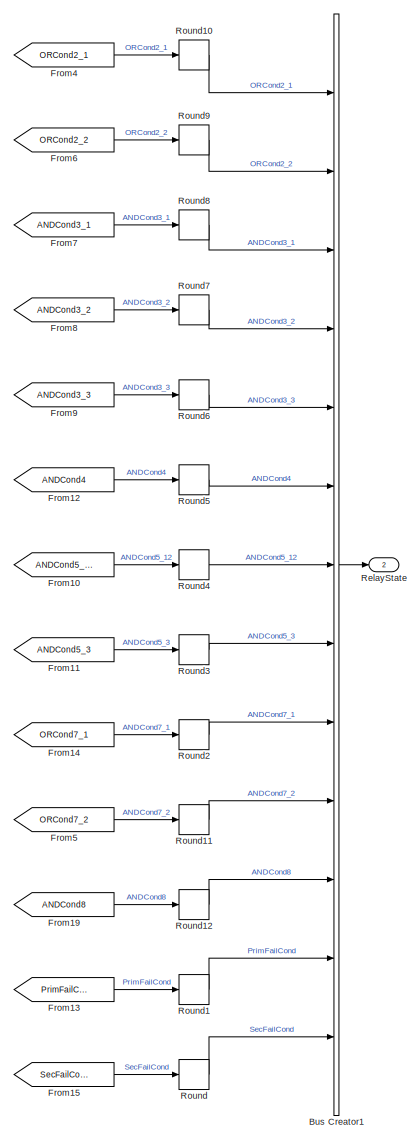
[diagram: root canvas - part 1/5, top right region]
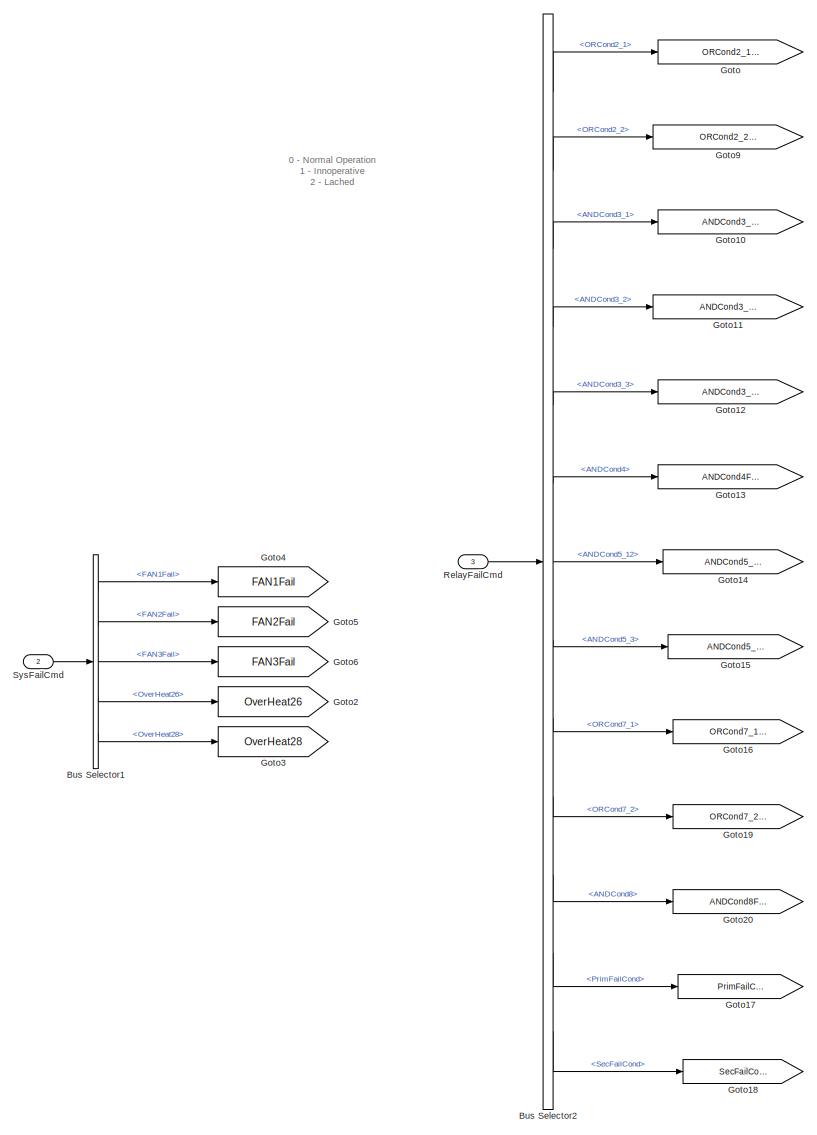
[diagram: root canvas - part 2/5, top center region]
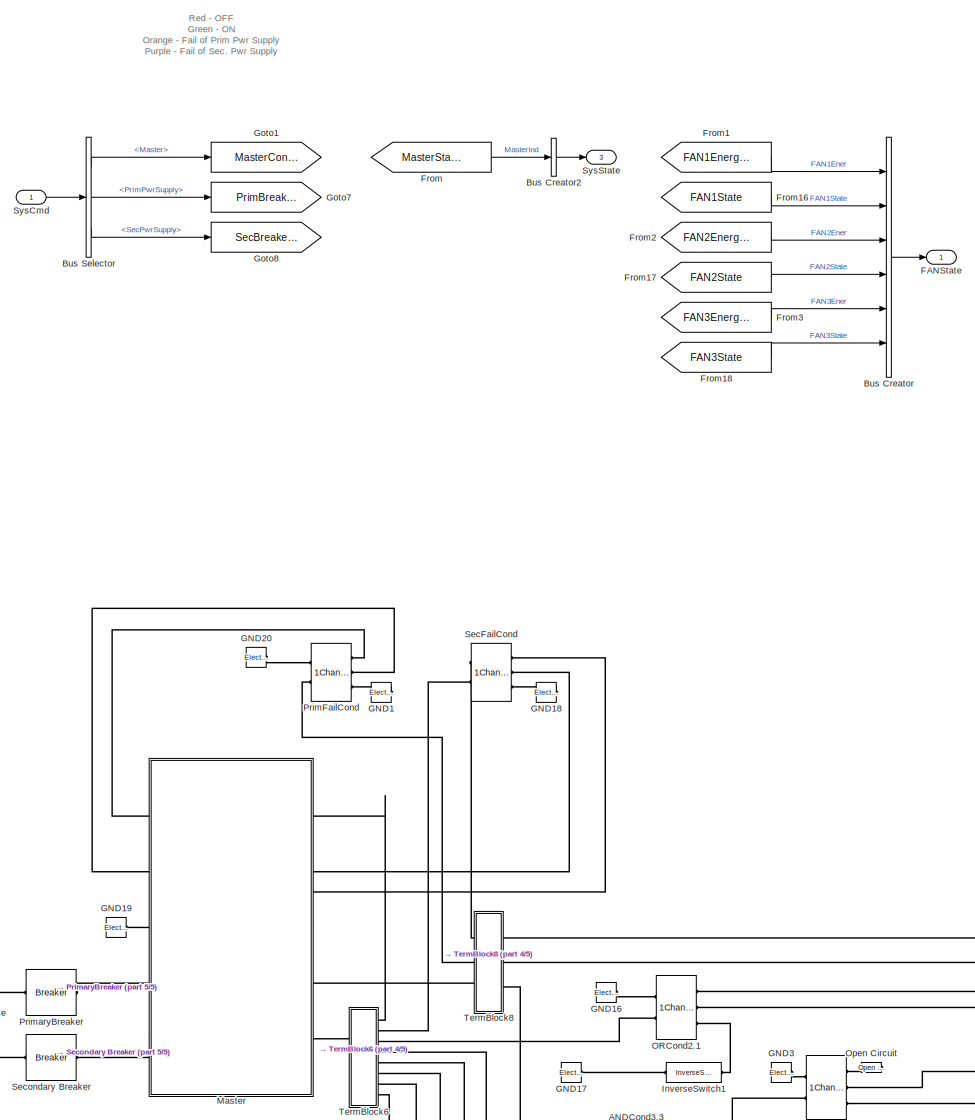
[diagram: root canvas - part 3/5, middle left region]
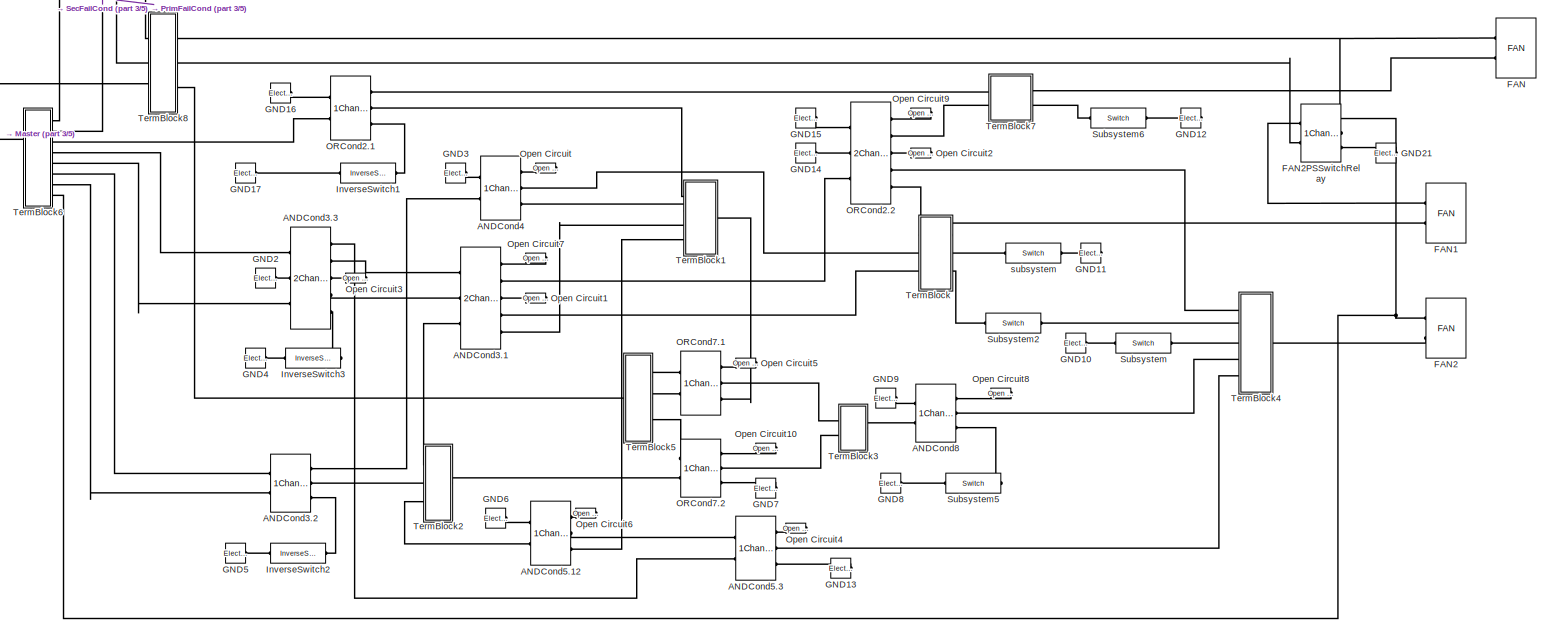
[diagram: root canvas - part 4/5, bottom center region]
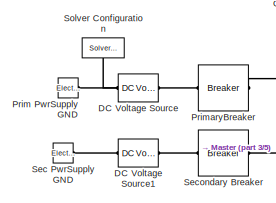
[diagram: root canvas - part 5/5, bottom left region]
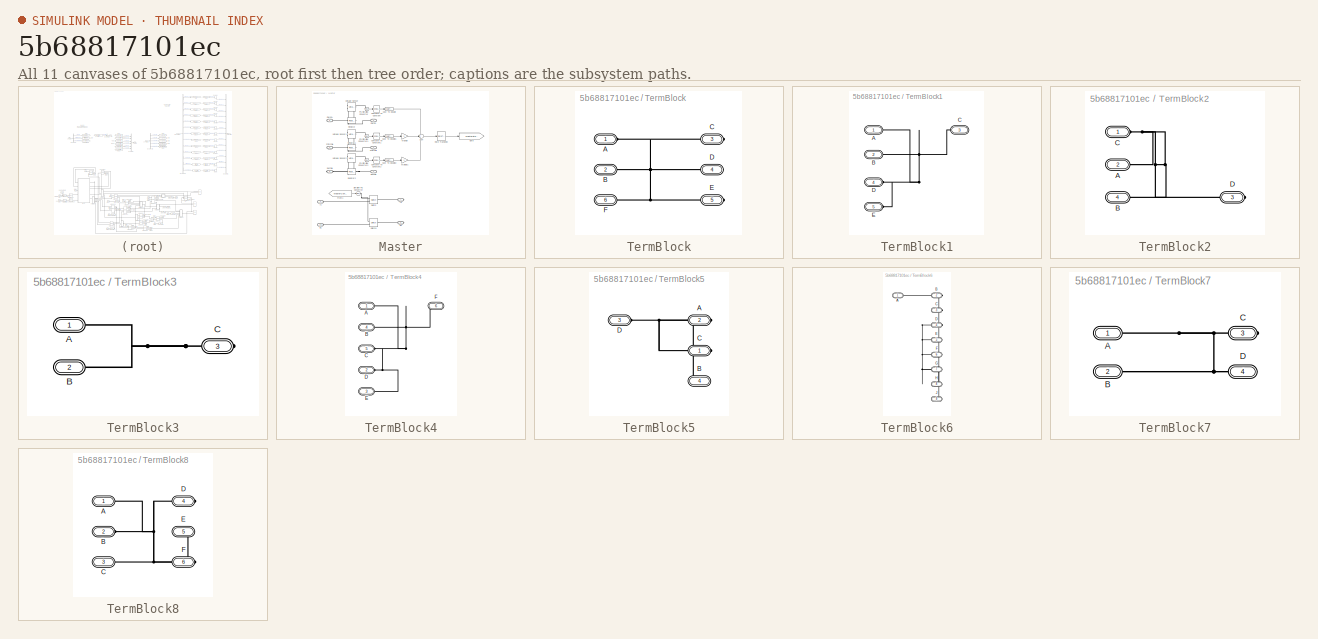
[diagram: thumbnail index - all 11 canvases of the model, root first then tree order]
MODEL slx_5b68817101ec
KIND model
CONFIG AbsTol = auto
CONFIG EnableMultiTasking = off
CONFIG FixedStep = 0.001
CONFIG MaxStep = auto
CONFIG MinStep = auto
CONFIG RelTol = 1e-3
CONFIG SampleTimeConstraint = Unconstrained
CONFIG Solver = ode4
CONFIG SolverName = ode4
CONFIG StartTime = 0.0
CONFIG StopTime = Inf
BLOCK [Reference] ANDCond3.1  REF=ElectricalElements/Switches/2ChannelRelay
  Ports = [0, 0, 0, 0, 0, 3, 5]
  SourceBlock = ElectricalElements/Switches/2ChannelRelay
BLOCK [Reference] ANDCond3.2  REF=ElectricalElements/Switches/1ChannelRelay
  Ports = [0, 0, 0, 0, 0, 2, 3]
  SourceBlock = ElectricalElements/Switches/1ChannelRelay
BLOCK [Reference] ANDCond3.3  REF=ElectricalElements/Switches/2ChannelRelay
  Ports = [0, 0, 0, 0, 0, 3, 5]
  SourceBlock = ElectricalElements/Switches/2ChannelRelay
BLOCK [Reference] ANDCond4  REF=ElectricalElements/Switches/1ChannelRelay
  Ports = [0, 0, 0, 0, 0, 2, 3]
  SourceBlock = ElectricalElements/Switches/1ChannelRelay
BLOCK [Reference] ANDCond5.12  REF=ElectricalElements/Switches/1ChannelRelay
  Ports = [0, 0, 0, 0, 0, 2, 3]
  SourceBlock = ElectricalElements/Switches/1ChannelRelay
BLOCK [Reference] ANDCond5.3  REF=ElectricalElements/Switches/1ChannelRelay
  Ports = [0, 0, 0, 0, 0, 2, 3]
  SourceBlock = ElectricalElements/Switches/1ChannelRelay
BLOCK [Reference] ANDCond8  REF=ElectricalElements/Switches/1ChannelRelay
  Ports = [0, 0, 0, 0, 0, 2, 3]
  SourceBlock = ElectricalElements/Switches/1ChannelRelay
BLOCK [BusCreator] Bus Creator
  DisplayOption = bar
  InheritFromInputs = on
  Inputs = 6
  Ports = [6, 1]
BLOCK [BusCreator] Bus Creator1
  DisplayOption = bar
  InheritFromInputs = on
  Inputs = 13
  Ports = [13, 1]
BLOCK [BusCreator] Bus Creator2
  DisplayOption = bar
  InheritFromInputs = on
  Inputs = 1
  Ports = [1, 1]
BLOCK [BusSelector] Bus Selector
  OutputAsBus = off
  OutputSignals = Master,PrimPwrSupply,SecPwrSupply
  Ports = [1, 3]
BLOCK [BusSelector] Bus Selector1
  OutputAsBus = off
  OutputSignals = FAN1Fail,FAN2Fail,FAN3Fail,OverHeat26,OverHeat28
  Ports = [1, 5]
BLOCK [BusSelector] Bus Selector2
  OutputAsBus = off
  OutputSignals = ORCond2_1,ORCond2_2,ANDCond3_1,ANDCond3_2,ANDCond3_3,ANDCond4,ANDCond5_12,ANDCond5_3,ORCond7_1,ORCond7_2,ANDCond8,PrimFailCond,SecFailCond
  Ports = [1, 13]
BLOCK [Reference] DC Voltage Source  REF=ee_lib/Additional
Components/SPICE Sources/DC Voltage Source
  Ports = [0, 0, 0, 0, 0, 1, 1]
  SourceBlock = ee_lib/Additional\nComponents/SPICE Sources/DC Voltage Source
  SourceProductBaseCode = PS
  SourceProductName = Simscape Electrical
  SourceType = DC Voltage Source
BLOCK [Reference] DC Voltage Source1  REF=ee_lib/Additional
Components/SPICE Sources/DC Voltage Source
  Ports = [0, 0, 0, 0, 0, 1, 1]
  SourceBlock = ee_lib/Additional\nComponents/SPICE Sources/DC Voltage Source
  SourceProductBaseCode = PS
  SourceProductName = Simscape Electrical
  SourceType = DC Voltage Source
BLOCK [Reference] FAN  REF=ElectricalElements/FunctionalItems/FAN
  AttributesFormatString = FAN%<FANNumber>
  Ports = [0, 0, 0, 0, 0, 2]
  SourceBlock = ElectricalElements/FunctionalItems/FAN
BLOCK [Reference] FAN1  REF=ElectricalElements/FunctionalItems/FAN
  AttributesFormatString = FAN%<FANNumber>
  Ports = [0, 0, 0, 0, 0, 2]
  SourceBlock = ElectricalElements/FunctionalItems/FAN
BLOCK [Reference] FAN2  REF=ElectricalElements/FunctionalItems/FAN
  AttributesFormatString = FAN%<FANNumber>
  Ports = [0, 0, 0, 0, 0, 2]
  SourceBlock = ElectricalElements/FunctionalItems/FAN
BLOCK [Reference] FAN2PSSwitchRelay  REF=ElectricalElements/Switches/1ChannelRelay
  Ports = [0, 0, 0, 0, 0, 2, 3]
  SourceBlock = ElectricalElements/Switches/1ChannelRelay
BLOCK [Outport] FANState
  IconDisplay = Port number
  OutDataTypeStr = Bus: FANState
  SampleTime = [0.001 0]
BLOCK [From] From
  GotoTag = MasterState
  TagVisibility = global
BLOCK [From] From1
  GotoTag = FAN1Energized
  TagVisibility = global
BLOCK [From] From10
  GotoTag = ANDCond5_12
  TagVisibility = global
BLOCK [From] From11
  GotoTag = ANDCond5_3
  TagVisibility = global
BLOCK [From] From12
  GotoTag = ANDCond4
  TagVisibility = global
BLOCK [From] From13
  GotoTag = PrimFailCond
  TagVisibility = global
BLOCK [From] From14
  GotoTag = ORCond7_1
  TagVisibility = global
BLOCK [From] From15
  GotoTag = SecFailCond
  TagVisibility = global
BLOCK [From] From16
  GotoTag = FAN1State
  TagVisibility = global
BLOCK [From] From17
  GotoTag = FAN2State
  TagVisibility = global
BLOCK [From] From18
  GotoTag = FAN3State
  TagVisibility = global
BLOCK [From] From19
  GotoTag = ANDCond8
  TagVisibility = global
BLOCK [From] From2
  GotoTag = FAN2Energized
  TagVisibility = global
BLOCK [From] From3
  GotoTag = FAN3Energized
  TagVisibility = global
BLOCK [From] From4
  GotoTag = ORCond2_1
  TagVisibility = global
BLOCK [From] From5
  GotoTag = ORCond7_2
  TagVisibility = global
BLOCK [From] From6
  GotoTag = ORCond2_2
  TagVisibility = global
BLOCK [From] From7
  GotoTag = ANDCond3_1
  TagVisibility = global
BLOCK [From] From8
  GotoTag = ANDCond3_2
  TagVisibility = global
BLOCK [From] From9
  GotoTag = ANDCond3_3
  TagVisibility = global
BLOCK [Reference] GND1  REF=fl_lib/Electrical/Electrical Elements/Electrical Reference
  Ports = [0, 0, 0, 0, 0, 1]
  SourceBlock = fl_lib/Electrical/Electrical Elements/Electrical Reference
  SourceProductBaseCode = SS
  SourceProductName = Simscape
  SourceType = Electrical Reference
BLOCK [Reference] GND10  REF=fl_lib/Electrical/Electrical Elements/Electrical Reference
  Ports = [0, 0, 0, 0, 0, 1]
  SourceBlock = fl_lib/Electrical/Electrical Elements/Electrical Reference
  SourceProductBaseCode = SS
  SourceProductName = Simscape
  SourceType = Electrical Reference
BLOCK [Reference] GND11  REF=fl_lib/Electrical/Electrical Elements/Electrical Reference
  Ports = [0, 0, 0, 0, 0, 1]
  SourceBlock = fl_lib/Electrical/Electrical Elements/Electrical Reference
  SourceProductBaseCode = SS
  SourceProductName = Simscape
  SourceType = Electrical Reference
BLOCK [Reference] GND12  REF=fl_lib/Electrical/Electrical Elements/Electrical Reference
  Ports = [0, 0, 0, 0, 0, 1]
  SourceBlock = fl_lib/Electrical/Electrical Elements/Electrical Reference
  SourceProductBaseCode = SS
  SourceProductName = Simscape
  SourceType = Electrical Reference
BLOCK [Reference] GND13  REF=fl_lib/Electrical/Electrical Elements/Electrical Reference
  Ports = [0, 0, 0, 0, 0, 1]
  SourceBlock = fl_lib/Electrical/Electrical Elements/Electrical Reference
  SourceProductBaseCode = SS
  SourceProductName = Simscape
  SourceType = Electrical Reference
BLOCK [Reference] GND14  REF=fl_lib/Electrical/Electrical Elements/Electrical Reference
  Ports = [0, 0, 0, 0, 0, 1]
  SourceBlock = fl_lib/Electrical/Electrical Elements/Electrical Reference
  SourceProductBaseCode = SS
  SourceProductName = Simscape
  SourceType = Electrical Reference
BLOCK [Reference] GND15  REF=fl_lib/Electrical/Electrical Elements/Electrical Reference
  Ports = [0, 0, 0, 0, 0, 1]
  SourceBlock = fl_lib/Electrical/Electrical Elements/Electrical Reference
  SourceProductBaseCode = SS
  SourceProductName = Simscape
  SourceType = Electrical Reference
BLOCK [Reference] GND16  REF=fl_lib/Electrical/Electrical Elements/Electrical Reference
  Ports = [0, 0, 0, 0, 0, 1]
  SourceBlock = fl_lib/Electrical/Electrical Elements/Electrical Reference
  SourceProductBaseCode = SS
  SourceProductName = Simscape
  SourceType = Electrical Reference
BLOCK [Reference] GND17  REF=fl_lib/Electrical/Electrical Elements/Electrical Reference
  Ports = [0, 0, 0, 0, 0, 1]
  SourceBlock = fl_lib/Electrical/Electrical Elements/Electrical Reference
  SourceProductBaseCode = SS
  SourceProductName = Simscape
  SourceType = Electrical Reference
BLOCK [Reference] GND18  REF=fl_lib/Electrical/Electrical Elements/Electrical Reference
  Ports = [0, 0, 0, 0, 0, 1]
  SourceBlock = fl_lib/Electrical/Electrical Elements/Electrical Reference
  SourceProductBaseCode = SS
  SourceProductName = Simscape
  SourceType = Electrical Reference
BLOCK [Reference] GND19  REF=fl_lib/Electrical/Electrical Elements/Electrical Reference
  Ports = [0, 0, 0, 0, 0, 1]
  SourceBlock = fl_lib/Electrical/Electrical Elements/Electrical Reference
  SourceProductBaseCode = SS
  SourceProductName = Simscape
  SourceType = Electrical Reference
BLOCK [Reference] GND2  REF=fl_lib/Electrical/Electrical Elements/Electrical Reference
  Ports = [0, 0, 0, 0, 0, 1]
  SourceBlock = fl_lib/Electrical/Electrical Elements/Electrical Reference
  SourceProductBaseCode = SS
  SourceProductName = Simscape
  SourceType = Electrical Reference
BLOCK [Reference] GND20  REF=fl_lib/Electrical/Electrical Elements/Electrical Reference
  Ports = [0, 0, 0, 0, 0, 1]
  SourceBlock = fl_lib/Electrical/Electrical Elements/Electrical Reference
  SourceProductBaseCode = SS
  SourceProductName = Simscape
  SourceType = Electrical Reference
BLOCK [Reference] GND21  REF=fl_lib/Electrical/Electrical Elements/Electrical Reference
  Ports = [0, 0, 0, 0, 0, 1]
  SourceBlock = fl_lib/Electrical/Electrical Elements/Electrical Reference
  SourceProductBaseCode = SS
  SourceProductName = Simscape
  SourceType = Electrical Reference
BLOCK [Reference] GND3  REF=fl_lib/Electrical/Electrical Elements/Electrical Reference
  Ports = [0, 0, 0, 0, 0, 1]
  SourceBlock = fl_lib/Electrical/Electrical Elements/Electrical Reference
  SourceProductBaseCode = SS
  SourceProductName = Simscape
  SourceType = Electrical Reference
BLOCK [Reference] GND4  REF=fl_lib/Electrical/Electrical Elements/Electrical Reference
  Ports = [0, 0, 0, 0, 0, 1]
  SourceBlock = fl_lib/Electrical/Electrical Elements/Electrical Reference
  SourceProductBaseCode = SS
  SourceProductName = Simscape
  SourceType = Electrical Reference
BLOCK [Reference] GND5  REF=fl_lib/Electrical/Electrical Elements/Electrical Reference
  Ports = [0, 0, 0, 0, 0, 1]
  SourceBlock = fl_lib/Electrical/Electrical Elements/Electrical Reference
  SourceProductBaseCode = SS
  SourceProductName = Simscape
  SourceType = Electrical Reference
BLOCK [Reference] GND6  REF=fl_lib/Electrical/Electrical Elements/Electrical Reference
  Ports = [0, 0, 0, 0, 0, 1]
  SourceBlock = fl_lib/Electrical/Electrical Elements/Electrical Reference
  SourceProductBaseCode = SS
  SourceProductName = Simscape
  SourceType = Electrical Reference
BLOCK [Reference] GND7  REF=fl_lib/Electrical/Electrical Elements/Electrical Reference
  Ports = [0, 0, 0, 0, 0, 1]
  SourceBlock = fl_lib/Electrical/Electrical Elements/Electrical Reference
  SourceProductBaseCode = SS
  SourceProductName = Simscape
  SourceType = Electrical Reference
BLOCK [Reference] GND8  REF=fl_lib/Electrical/Electrical Elements/Electrical Reference
  Ports = [0, 0, 0, 0, 0, 1]
  SourceBlock = fl_lib/Electrical/Electrical Elements/Electrical Reference
  SourceProductBaseCode = SS
  SourceProductName = Simscape
  SourceType = Electrical Reference
BLOCK [Reference] GND9  REF=fl_lib/Electrical/Electrical Elements/Electrical Reference
  Ports = [0, 0, 0, 0, 0, 1]
  SourceBlock = fl_lib/Electrical/Electrical Elements/Electrical Reference
  SourceProductBaseCode = SS
  SourceProductName = Simscape
  SourceType = Electrical Reference
BLOCK [Goto] Goto
  GotoTag = ORCond2_1FailMode
  TagVisibility = global
BLOCK [Goto] Goto1
  GotoTag = MasterControl
  TagVisibility = global
BLOCK [Goto] Goto10
  GotoTag = ANDCond3_1FailMode
  TagVisibility = global
BLOCK [Goto] Goto11
  GotoTag = ANDCond3_2FailMode
  TagVisibility = global
BLOCK [Goto] Goto12
  GotoTag = ANDCond3_3FailMode
  TagVisibility = global
BLOCK [Goto] Goto13
  GotoTag = ANDCond4FailMode
  TagVisibility = global
BLOCK [Goto] Goto14
  GotoTag = ANDCond5_12FailMode
  TagVisibility = global
BLOCK [Goto] Goto15
  GotoTag = ANDCond5_3FailMode
  TagVisibility = global
BLOCK [Goto] Goto16
  GotoTag = ORCond7_1FailMode
  TagVisibility = global
BLOCK [Goto] Goto17
  GotoTag = PrimFailCondFailMode
  TagVisibility = global
BLOCK [Goto] Goto18
  GotoTag = SecFailCondFailMode
  TagVisibility = global
BLOCK [Goto] Goto19
  GotoTag = ORCond7_2FailMode
  TagVisibility = global
BLOCK [Goto] Goto2
  GotoTag = OverHeat26
  TagVisibility = global
BLOCK [Goto] Goto20
  GotoTag = ANDCond8FailMode
  TagVisibility = global
BLOCK [Goto] Goto3
  GotoTag = OverHeat28
  TagVisibility = global
BLOCK [Goto] Goto4
  GotoTag = FAN1Fail
  TagVisibility = global
BLOCK [Goto] Goto5
  GotoTag = FAN2Fail
  TagVisibility = global
BLOCK [Goto] Goto6
  GotoTag = FAN3Fail
  TagVisibility = global
BLOCK [Goto] Goto7
  GotoTag = PrimBreakerCommand
  TagVisibility = global
BLOCK [Goto] Goto8
  GotoTag = SecBreakerCommand
  TagVisibility = global
BLOCK [Goto] Goto9
  GotoTag = ORCond2_2FailMode
  TagVisibility = global
BLOCK [Reference] InverseSwitch1  REF=ElectricalElements/Switches/InverseSwitch
  AttributesFormatString = Inverse %<SwitchTag>
  Ports = [0, 0, 0, 0, 0, 1, 1]
  SourceBlock = ElectricalElements/Switches/InverseSwitch
BLOCK [Reference] InverseSwitch2  REF=ElectricalElements/Switches/InverseSwitch
  AttributesFormatString = Inverse %<SwitchTag>
  Ports = [0, 0, 0, 0, 0, 1, 1]
  SourceBlock = ElectricalElements/Switches/InverseSwitch
BLOCK [Reference] InverseSwitch3  REF=ElectricalElements/Switches/InverseSwitch
  AttributesFormatString = Inverse %<SwitchTag>
  Ports = [0, 0, 0, 0, 0, 1, 1]
  SourceBlock = ElectricalElements/Switches/InverseSwitch
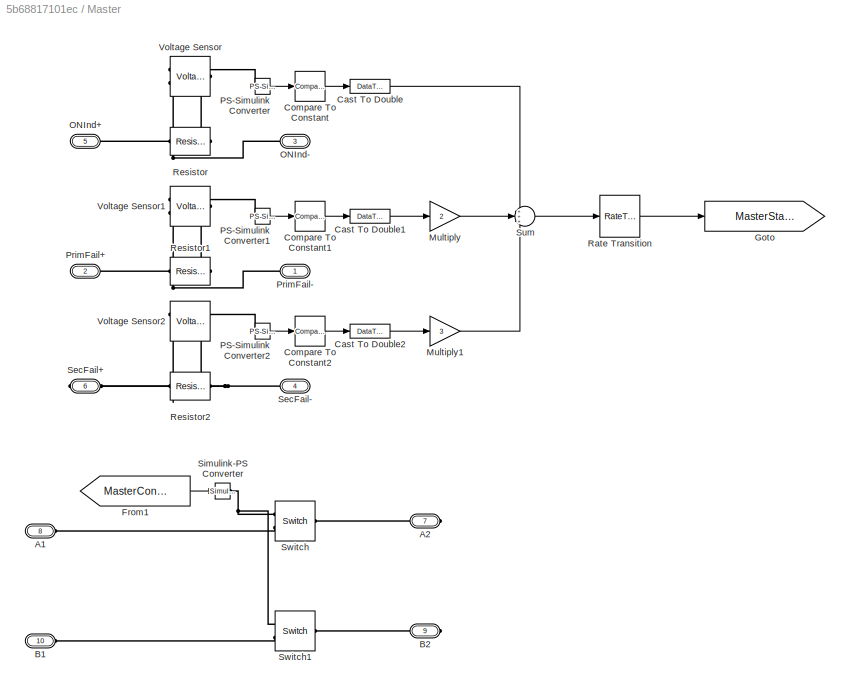
BLOCK [SubSystem] Master
  Ports = [0, 0, 0, 0, 0, 5, 5]
  RequestExecContextInheritance = off
BLOCK [PMIOPort] Master/A1
  Port = 8
  Side = Left
BLOCK [PMIOPort] Master/A2
  Port = 7
  Side = Right
BLOCK [PMIOPort] Master/B1
  Port = 10
  Side = Left
BLOCK [PMIOPort] Master/B2
  Port = 9
  Side = Right
BLOCK [DataTypeConversion] Master/Cast To Double
  OutDataTypeStr = double
  RndMeth = Floor
  SaturateOnIntegerOverflow = off
BLOCK [DataTypeConversion] Master/Cast To Double1
  OutDataTypeStr = double
  RndMeth = Floor
  SaturateOnIntegerOverflow = off
BLOCK [DataTypeConversion] Master/Cast To Double2
  OutDataTypeStr = double
  RndMeth = Floor
  SaturateOnIntegerOverflow = off
BLOCK [Reference] Master/Compare To Constant  REF=simulink/Logic and Bit
Operations/Compare
To Constant
  Ports = [1, 1]
  SourceBlock = simulink/Logic and Bit\nOperations/Compare\nTo Constant
  SourceProductBaseCode = SL
  SourceProductName = Simulink
  SourceType = Compare To Constant
BLOCK [Reference] Master/Compare To Constant1  REF=simulink/Logic and Bit
Operations/Compare
To Constant
  Ports = [1, 1]
  SourceBlock = simulink/Logic and Bit\nOperations/Compare\nTo Constant
  SourceProductBaseCode = SL
  SourceProductName = Simulink
  SourceType = Compare To Constant
BLOCK [Reference] Master/Compare To Constant2  REF=simulink/Logic and Bit
Operations/Compare
To Constant
  Ports = [1, 1]
  SourceBlock = simulink/Logic and Bit\nOperations/Compare\nTo Constant
  SourceProductBaseCode = SL
  SourceProductName = Simulink
  SourceType = Compare To Constant
BLOCK [From] Master/From1
  GotoTag = MasterControl
  TagVisibility = global
BLOCK [Goto] Master/Goto
  GotoTag = MasterState
  TagVisibility = global
BLOCK [Gain] Master/Multiply
  Gain = 2
  OutDataTypeStr = Inherit: Inherit via internal rule
  ParamDataTypeStr = Inherit: Inherit via internal rule
  SaturateOnIntegerOverflow = off
BLOCK [Gain] Master/Multiply1
  Gain = 3
  OutDataTypeStr = Inherit: Inherit via internal rule
  ParamDataTypeStr = Inherit: Inherit via internal rule
  SaturateOnIntegerOverflow = off
BLOCK [PMIOPort] Master/ONInd+
  Port = 5
  Side = Right
BLOCK [PMIOPort] Master/ONInd-
  Port = 3
  Side = Left
BLOCK [Reference] Master/PS-Simulink Converter  REF=nesl_utility/PS-Simulink
Converter
  Ports = [0, 1, 0, 0, 0, 1]
  SourceBlock = nesl_utility/PS-Simulink\nConverter
  SourceProductBaseCode = SS
  SourceProductName = Simscape
  SourceType = PS-Simulink\nConverter
BLOCK [Reference] Master/PS-Simulink Converter1  REF=nesl_utility/PS-Simulink
Converter
  Ports = [0, 1, 0, 0, 0, 1]
  SourceBlock = nesl_utility/PS-Simulink\nConverter
  SourceProductBaseCode = SS
  SourceProductName = Simscape
  SourceType = PS-Simulink\nConverter
BLOCK [Reference] Master/PS-Simulink Converter2  REF=nesl_utility/PS-Simulink
Converter
  Ports = [0, 1, 0, 0, 0, 1]
  SourceBlock = nesl_utility/PS-Simulink\nConverter
  SourceProductBaseCode = SS
  SourceProductName = Simscape
  SourceType = PS-Simulink\nConverter
BLOCK [PMIOPort] Master/PrimFail+
  Port = 2
  Side = Right
BLOCK [PMIOPort] Master/PrimFail-
  Side = Left
BLOCK [RateTransition] Master/Rate Transition
  OutPortSampleTime = [0.001 0]
BLOCK [Reference] Master/Resistor  REF=fl_lib/Electrical/Electrical Elements/Resistor
  Ports = [0, 0, 0, 0, 0, 1, 1]
  SourceBlock = fl_lib/Electrical/Electrical Elements/Resistor
  SourceProductBaseCode = SS
  SourceProductName = Simscape
  SourceType = Resistor
BLOCK [Reference] Master/Resistor1  REF=fl_lib/Electrical/Electrical Elements/Resistor
  Ports = [0, 0, 0, 0, 0, 1, 1]
  SourceBlock = fl_lib/Electrical/Electrical Elements/Resistor
  SourceProductBaseCode = SS
  SourceProductName = Simscape
  SourceType = Resistor
BLOCK [Reference] Master/Resistor2  REF=fl_lib/Electrical/Electrical Elements/Resistor
  Ports = [0, 0, 0, 0, 0, 1, 1]
  SourceBlock = fl_lib/Electrical/Electrical Elements/Resistor
  SourceProductBaseCode = SS
  SourceProductName = Simscape
  SourceType = Resistor
BLOCK [PMIOPort] Master/SecFail+
  Port = 6
  Side = Right
BLOCK [PMIOPort] Master/SecFail-
  Port = 4
  Side = Left
BLOCK [Reference] Master/Simulink-PS Converter  REF=nesl_utility/Simulink-PS
Converter
  Ports = [1, 0, 0, 0, 0, 0, 1]
  SourceBlock = nesl_utility/Simulink-PS\nConverter
  SourceProductBaseCode = SS
  SourceProductName = Simscape
  SourceType = Simulink-PS\nConverter
BLOCK [Sum] Master/Sum
  IconShape = round
  InputSameDT = off
  Inputs = +++
  OutDataTypeStr = Inherit: Inherit via internal rule
  Ports = [3, 1]
  SaturateOnIntegerOverflow = off
BLOCK [Reference] Master/Switch  REF=fl_lib/Electrical/Electrical Elements/Switch
  Ports = [0, 0, 0, 0, 0, 1, 2]
  SourceBlock = fl_lib/Electrical/Electrical Elements/Switch
  SourceProductBaseCode = SS
  SourceProductName = Simscape
  SourceType = Switch
BLOCK [Reference] Master/Switch1  REF=fl_lib/Electrical/Electrical Elements/Switch
  Ports = [0, 0, 0, 0, 0, 1, 2]
  SourceBlock = fl_lib/Electrical/Electrical Elements/Switch
  SourceProductBaseCode = SS
  SourceProductName = Simscape
  SourceType = Switch
BLOCK [Reference] Master/Voltage Sensor  REF=fl_lib/Electrical/Electrical Sensors/Voltage Sensor
  Ports = [0, 0, 0, 0, 0, 1, 2]
  SourceBlock = fl_lib/Electrical/Electrical Sensors/Voltage Sensor
  SourceProductBaseCode = SS
  SourceProductName = Simscape
  SourceType = Voltage Sensor
BLOCK [Reference] Master/Voltage Sensor1  REF=fl_lib/Electrical/Electrical Sensors/Voltage Sensor
  Ports = [0, 0, 0, 0, 0, 1, 2]
  SourceBlock = fl_lib/Electrical/Electrical Sensors/Voltage Sensor
  SourceProductBaseCode = SS
  SourceProductName = Simscape
  SourceType = Voltage Sensor
BLOCK [Reference] Master/Voltage Sensor2  REF=fl_lib/Electrical/Electrical Sensors/Voltage Sensor
  Ports = [0, 0, 0, 0, 0, 1, 2]
  SourceBlock = fl_lib/Electrical/Electrical Sensors/Voltage Sensor
  SourceProductBaseCode = SS
  SourceProductName = Simscape
  SourceType = Voltage Sensor
BLOCK [Reference] ORCond2.1  REF=ElectricalElements/Switches/1ChannelRelay
  Ports = [0, 0, 0, 0, 0, 2, 3]
  SourceBlock = ElectricalElements/Switches/1ChannelRelay
BLOCK [Reference] ORCond2.2  REF=ElectricalElements/Switches/2ChannelRelay
  Ports = [0, 0, 0, 0, 0, 3, 5]
  SourceBlock = ElectricalElements/Switches/2ChannelRelay
BLOCK [Reference] ORCond7.1  REF=ElectricalElements/Switches/1ChannelRelay
  Ports = [0, 0, 0, 0, 0, 2, 3]
  SourceBlock = ElectricalElements/Switches/1ChannelRelay
BLOCK [Reference] ORCond7.2  REF=ElectricalElements/Switches/1ChannelRelay
  Ports = [0, 0, 0, 0, 0, 2, 3]
  SourceBlock = ElectricalElements/Switches/1ChannelRelay
BLOCK [Reference] Open Circuit  REF=fl_lib/Electrical/Electrical Elements/Open Circuit
  Ports = [0, 0, 0, 0, 0, 1]
  SourceBlock = fl_lib/Electrical/Electrical Elements/Open Circuit
  SourceProductBaseCode = SS
  SourceProductName = Simscape
  SourceType = Open Circuit
BLOCK [Reference] Open Circuit1  REF=fl_lib/Electrical/Electrical Elements/Open Circuit
  Ports = [0, 0, 0, 0, 0, 1]
  SourceBlock = fl_lib/Electrical/Electrical Elements/Open Circuit
  SourceProductBaseCode = SS
  SourceProductName = Simscape
  SourceType = Open Circuit
BLOCK [Reference] Open Circuit10  REF=fl_lib/Electrical/Electrical Elements/Open Circuit
  Ports = [0, 0, 0, 0, 0, 1]
  SourceBlock = fl_lib/Electrical/Electrical Elements/Open Circuit
  SourceProductBaseCode = SS
  SourceProductName = Simscape
  SourceType = Open Circuit
BLOCK [Reference] Open Circuit2  REF=fl_lib/Electrical/Electrical Elements/Open Circuit
  Ports = [0, 0, 0, 0, 0, 1]
  SourceBlock = fl_lib/Electrical/Electrical Elements/Open Circuit
  SourceProductBaseCode = SS
  SourceProductName = Simscape
  SourceType = Open Circuit
BLOCK [Reference] Open Circuit3  REF=fl_lib/Electrical/Electrical Elements/Open Circuit
  Ports = [0, 0, 0, 0, 0, 1]
  SourceBlock = fl_lib/Electrical/Electrical Elements/Open Circuit
  SourceProductBaseCode = SS
  SourceProductName = Simscape
  SourceType = Open Circuit
BLOCK [Reference] Open Circuit4  REF=fl_lib/Electrical/Electrical Elements/Open Circuit
  Ports = [0, 0, 0, 0, 0, 1]
  SourceBlock = fl_lib/Electrical/Electrical Elements/Open Circuit
  SourceProductBaseCode = SS
  SourceProductName = Simscape
  SourceType = Open Circuit
BLOCK [Reference] Open Circuit5  REF=fl_lib/Electrical/Electrical Elements/Open Circuit
  Ports = [0, 0, 0, 0, 0, 1]
  SourceBlock = fl_lib/Electrical/Electrical Elements/Open Circuit
  SourceProductBaseCode = SS
  SourceProductName = Simscape
  SourceType = Open Circuit
BLOCK [Reference] Open Circuit6  REF=fl_lib/Electrical/Electrical Elements/Open Circuit
  Ports = [0, 0, 0, 0, 0, 1]
  SourceBlock = fl_lib/Electrical/Electrical Elements/Open Circuit
  SourceProductBaseCode = SS
  SourceProductName = Simscape
  SourceType = Open Circuit
BLOCK [Reference] Open Circuit7  REF=fl_lib/Electrical/Electrical Elements/Open Circuit
  Ports = [0, 0, 0, 0, 0, 1]
  SourceBlock = fl_lib/Electrical/Electrical Elements/Open Circuit
  SourceProductBaseCode = SS
  SourceProductName = Simscape
  SourceType = Open Circuit
BLOCK [Reference] Open Circuit8  REF=fl_lib/Electrical/Electrical Elements/Open Circuit
  Ports = [0, 0, 0, 0, 0, 1]
  SourceBlock = fl_lib/Electrical/Electrical Elements/Open Circuit
  SourceProductBaseCode = SS
  SourceProductName = Simscape
  SourceType = Open Circuit
BLOCK [Reference] Open Circuit9  REF=fl_lib/Electrical/Electrical Elements/Open Circuit
  Ports = [0, 0, 0, 0, 0, 1]
  SourceBlock = fl_lib/Electrical/Electrical Elements/Open Circuit
  SourceProductBaseCode = SS
  SourceProductName = Simscape
  SourceType = Open Circuit
BLOCK [Reference] Prim PwrSupply GND  REF=fl_lib/Electrical/Electrical Elements/Electrical Reference
  Ports = [0, 0, 0, 0, 0, 1]
  SourceBlock = fl_lib/Electrical/Electrical Elements/Electrical Reference
  SourceProductBaseCode = SS
  SourceProductName = Simscape
  SourceType = Electrical Reference
BLOCK [Reference] PrimFailCond  REF=ElectricalElements/Switches/1ChannelRelay
  Ports = [0, 0, 0, 0, 0, 2, 3]
  SourceBlock = ElectricalElements/Switches/1ChannelRelay
BLOCK [Reference] PrimaryBreaker  REF=ElectricalElements/Switches/Breaker
  Ports = [0, 0, 0, 0, 0, 1, 1]
  SourceBlock = ElectricalElements/Switches/Breaker
BLOCK [Inport] RelayFailCmd
  IconDisplay = Port number
  OutDataTypeStr = Bus: RelayFailCmd
  Port = 3
  SampleTime = [0.001 0]
BLOCK [Outport] RelayState
  IconDisplay = Port number
  OutDataTypeStr = Bus: RelayState
  Port = 2
  SampleTime = [0.001 0]
BLOCK [Rounding] Round
  Operator = round
BLOCK [Rounding] Round1
  Operator = round
BLOCK [Rounding] Round10
  Operator = round
BLOCK [Rounding] Round11
  Operator = round
BLOCK [Rounding] Round12
  Operator = round
BLOCK [Rounding] Round2
  Operator = round
BLOCK [Rounding] Round3
  Operator = round
BLOCK [Rounding] Round4
  Operator = round
BLOCK [Rounding] Round5
  Operator = round
BLOCK [Rounding] Round6
  Operator = round
BLOCK [Rounding] Round7
  Operator = round
BLOCK [Rounding] Round8
  Operator = round
BLOCK [Rounding] Round9
  Operator = round
BLOCK [Reference] Sec PwrSupply GND  REF=fl_lib/Electrical/Electrical Elements/Electrical Reference
  Ports = [0, 0, 0, 0, 0, 1]
  SourceBlock = fl_lib/Electrical/Electrical Elements/Electrical Reference
  SourceProductBaseCode = SS
  SourceProductName = Simscape
  SourceType = Electrical Reference
BLOCK [Reference] SecFailCond  REF=ElectricalElements/Switches/1ChannelRelay
  Ports = [0, 0, 0, 0, 0, 2, 3]
  SourceBlock = ElectricalElements/Switches/1ChannelRelay
BLOCK [Reference] Secondary Breaker  REF=ElectricalElements/Switches/Breaker
  Ports = [0, 0, 0, 0, 0, 1, 1]
  SourceBlock = ElectricalElements/Switches/Breaker
BLOCK [Reference] Solver Configuration  REF=nesl_utility/Solver
Configuration
  Ports = [0, 0, 0, 0, 0, 0, 1]
  SourceBlock = nesl_utility/Solver\nConfiguration
  SourceProductBaseCode = SS
  SourceProductName = Simscape
  SourceType = Solver\nConfiguration
BLOCK [Reference] Subsystem  REF=ElectricalElements/Switches/Switch
  AttributesFormatString = %<SwitchTag>
  Ports = [0, 0, 0, 0, 0, 1, 1]
  SourceBlock = ElectricalElements/Switches/Switch
BLOCK [Reference] Subsystem2  REF=ElectricalElements/Switches/Switch
  AttributesFormatString = %<SwitchTag>
  Ports = [0, 0, 0, 0, 0, 1, 1]
  SourceBlock = ElectricalElements/Switches/Switch
BLOCK [Reference] Subsystem5  REF=ElectricalElements/Switches/Switch
  AttributesFormatString = %<SwitchTag>
  Ports = [0, 0, 0, 0, 0, 1, 1]
  SourceBlock = ElectricalElements/Switches/Switch
BLOCK [Reference] Subsystem6  REF=ElectricalElements/Switches/Switch
  AttributesFormatString = %<SwitchTag>
  Ports = [0, 0, 0, 0, 0, 1, 1]
  SourceBlock = ElectricalElements/Switches/Switch
BLOCK [Inport] SysCmd
  IconDisplay = Port number
  OutDataTypeStr = Bus: SysCmd
  SampleTime = [0.001 0]
BLOCK [Inport] SysFailCmd
  IconDisplay = Port number
  OutDataTypeStr = Bus: SysFailCmd
  Port = 2
  SampleTime = [0.001 0]
BLOCK [Outport] SysState
  IconDisplay = Port number
  OutDataTypeStr = Bus: SysState
  Port = 3
  SampleTime = [0.001 0]
BLOCK [SubSystem] TermBlock
  Ports = [0, 0, 0, 0, 0, 3, 3]
  RequestExecContextInheritance = off
BLOCK [PMIOPort] TermBlock/A
  Side = Left
BLOCK [PMIOPort] TermBlock/B
  Port = 2
  Side = Left
BLOCK [PMIOPort] TermBlock/C
  Port = 3
  Side = Right
BLOCK [PMIOPort] TermBlock/D
  Port = 4
  Side = Right
BLOCK [PMIOPort] TermBlock/E
  Port = 5
  Side = Right
BLOCK [PMIOPort] TermBlock/F
  Port = 6
  Side = Left
BLOCK [SubSystem] TermBlock1
  Ports = [0, 0, 0, 0, 0, 4, 1]
  RequestExecContextInheritance = off
BLOCK [PMIOPort] TermBlock1/A
  Side = Left
BLOCK [PMIOPort] TermBlock1/B
  Port = 2
  Side = Left
BLOCK [PMIOPort] TermBlock1/C
  Port = 3
  Side = Right
BLOCK [PMIOPort] TermBlock1/D
  Port = 4
  Side = Left
BLOCK [PMIOPort] TermBlock1/E
  Port = 5
  Side = Left
BLOCK [SubSystem] TermBlock2
  Ports = [0, 0, 0, 0, 0, 3, 1]
  RequestExecContextInheritance = off
BLOCK [PMIOPort] TermBlock2/A
  Port = 2
  Side = Left
BLOCK [PMIOPort] TermBlock2/B
  Port = 4
  Side = Left
BLOCK [PMIOPort] TermBlock2/C
  Side = Left
BLOCK [PMIOPort] TermBlock2/D
  Port = 3
  Side = Right
BLOCK [SubSystem] TermBlock3
  Ports = [0, 0, 0, 0, 0, 2, 1]
  RequestExecContextInheritance = off
BLOCK [PMIOPort] TermBlock3/A
  Side = Left
BLOCK [PMIOPort] TermBlock3/B
  Port = 2
  Side = Left
BLOCK [PMIOPort] TermBlock3/C
  Port = 3
  Side = Right
BLOCK [SubSystem] TermBlock4
  Ports = [0, 0, 0, 0, 0, 5, 1]
  RequestExecContextInheritance = off
BLOCK [PMIOPort] TermBlock4/A
  Side = Left
BLOCK [PMIOPort] TermBlock4/B
  Port = 4
  Side = Left
BLOCK [PMIOPort] TermBlock4/C
  Port = 5
  Side = Left
BLOCK [PMIOPort] TermBlock4/D
  Port = 2
  Side = Left
BLOCK [PMIOPort] TermBlock4/E
  Port = 3
  Side = Left
BLOCK [PMIOPort] TermBlock4/F
  Port = 6
  Side = Right
BLOCK [SubSystem] TermBlock5
  Ports = [0, 0, 0, 0, 0, 1, 3]
  RequestExecContextInheritance = off
BLOCK [PMIOPort] TermBlock5/A
  Port = 2
  Side = Right
BLOCK [PMIOPort] TermBlock5/B
  Port = 4
  Side = Right
BLOCK [PMIOPort] TermBlock5/C
  Side = Right
BLOCK [PMIOPort] TermBlock5/D
  Port = 3
  Side = Left
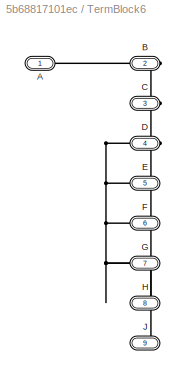
BLOCK [SubSystem] TermBlock6
  Ports = [0, 0, 0, 0, 0, 1, 8]
  RequestExecContextInheritance = off
BLOCK [PMIOPort] TermBlock6/A
  Side = Left
BLOCK [PMIOPort] TermBlock6/B
  Port = 2
  Side = Right
BLOCK [PMIOPort] TermBlock6/C
  Port = 3
  Side = Right
BLOCK [PMIOPort] TermBlock6/D
  Port = 4
  Side = Right
BLOCK [PMIOPort] TermBlock6/E
  Port = 5
  Side = Right
BLOCK [PMIOPort] TermBlock6/F
  Port = 6
  Side = Right
BLOCK [PMIOPort] TermBlock6/G
  Port = 7
  Side = Right
BLOCK [PMIOPort] TermBlock6/H
  Port = 8
  Side = Right
BLOCK [PMIOPort] TermBlock6/J
  Port = 9
  Side = Right
BLOCK [SubSystem] TermBlock7
  Ports = [0, 0, 0, 0, 0, 2, 2]
  RequestExecContextInheritance = off
BLOCK [PMIOPort] TermBlock7/A
  Side = Left
BLOCK [PMIOPort] TermBlock7/B
  Port = 2
  Side = Left
BLOCK [PMIOPort] TermBlock7/C
  Port = 3
  Side = Right
BLOCK [PMIOPort] TermBlock7/D
  Port = 4
  Side = Right
BLOCK [SubSystem] TermBlock8
  Ports = [0, 0, 0, 0, 0, 3, 3]
  RequestExecContextInheritance = off
BLOCK [PMIOPort] TermBlock8/A
  Side = Left
BLOCK [PMIOPort] TermBlock8/B
  Port = 2
  Side = Left
BLOCK [PMIOPort] TermBlock8/C
  Port = 3
  Side = Left
BLOCK [PMIOPort] TermBlock8/D
  Port = 4
  Side = Right
BLOCK [PMIOPort] TermBlock8/E
  Port = 5
  Side = Right
BLOCK [PMIOPort] TermBlock8/F
  Port = 6
  Side = Right
BLOCK [Reference] subsystem  REF=ElectricalElements/Switches/Switch
  AttributesFormatString = %<SwitchTag>
  Ports = [0, 0, 0, 0, 0, 1, 1]
  SourceBlock = ElectricalElements/Switches/Switch
ANNOTATION (root): Red - OFF Green - ON Orange - Fail of Prim Pwr Supply Purple - Fail of Sec. Pwr Supply
ANNOTATION (root): 0 - Normal Operation 1 - Innoperative 2 - Lached
LINE Bus Creator1:1 -> RelayState:1
LINE Bus Creator2:1 -> SysState:1
LINE Bus Creator:1 -> FANState:1
LINE Bus Selector1:1 -> Goto4:1
LINE Bus Selector1:2 -> Goto5:1
LINE Bus Selector1:3 -> Goto6:1
LINE Bus Selector1:4 -> Goto2:1
LINE Bus Selector1:5 -> Goto3:1
LINE Bus Selector2:1 -> Goto:1
LINE Bus Selector2:10 -> Goto19:1
LINE Bus Selector2:11 -> Goto20:1
LINE Bus Selector2:12 -> Goto17:1
LINE Bus Selector2:13 -> Goto18:1
LINE Bus Selector2:2 -> Goto9:1
LINE Bus Selector2:3 -> Goto10:1
LINE Bus Selector2:4 -> Goto11:1
LINE Bus Selector2:5 -> Goto12:1
LINE Bus Selector2:6 -> Goto13:1
LINE Bus Selector2:7 -> Goto14:1
LINE Bus Selector2:8 -> Goto15:1
LINE Bus Selector2:9 -> Goto16:1
LINE Bus Selector:1 -> Goto1:1
LINE Bus Selector:2 -> Goto7:1
LINE Bus Selector:3 -> Goto8:1
LINE From10:1 -> Round4:1
LINE From11:1 -> Round3:1
LINE From12:1 -> Round5:1
LINE From13:1 -> Round1:1
LINE From14:1 -> Round2:1
LINE From15:1 -> Round:1
LINE From16:1 -> Bus Creator:2
LINE From17:1 -> Bus Creator:4
LINE From18:1 -> Bus Creator:6
LINE From19:1 -> Round12:1
LINE From1:1 -> Bus Creator:1
LINE From2:1 -> Bus Creator:3
LINE From3:1 -> Bus Creator:5
LINE From4:1 -> Round10:1
LINE From5:1 -> Round11:1
LINE From6:1 -> Round9:1
LINE From7:1 -> Round8:1
LINE From8:1 -> Round7:1
LINE From9:1 -> Round6:1
LINE From:1 -> Bus Creator2:1
LINE Master/Cast To Double1:1 -> Master/Multiply:1
LINE Master/Cast To Double2:1 -> Master/Multiply1:1
LINE Master/Cast To Double:1 -> Master/Sum:1
LINE Master/Compare To Constant1:1 -> Master/Cast To Double1:1
LINE Master/Compare To Constant2:1 -> Master/Cast To Double2:1
LINE Master/Compare To Constant:1 -> Master/Cast To Double:1
LINE Master/From1:1 -> Master/Simulink-PS Converter:1
LINE Master/Multiply1:1 -> Master/Sum:3
LINE Master/Multiply:1 -> Master/Sum:2
LINE Master/PS-Simulink Converter1:1 -> Master/Compare To Constant1:1
LINE Master/PS-Simulink Converter2:1 -> Master/Compare To Constant2:1
LINE Master/PS-Simulink Converter:1 -> Master/Compare To Constant:1
LINE Master/Rate Transition:1 -> Master/Goto:1
LINE Master/Sum:1 -> Master/Rate Transition:1
LINE RelayFailCmd:1 -> Bus Selector2:1
LINE Round10:1 -> Bus Creator1:1
LINE Round11:1 -> Bus Creator1:10
LINE Round12:1 -> Bus Creator1:11
LINE Round1:1 -> Bus Creator1:12
LINE Round2:1 -> Bus Creator1:9
LINE Round3:1 -> Bus Creator1:8
LINE Round4:1 -> Bus Creator1:7
LINE Round5:1 -> Bus Creator1:6
LINE Round6:1 -> Bus Creator1:5
LINE Round7:1 -> Bus Creator1:4
LINE Round8:1 -> Bus Creator1:3
LINE Round9:1 -> Bus Creator1:2
LINE Round:1 -> Bus Creator1:13
LINE SysCmd:1 -> Bus Selector:1
LINE SysFailCmd:1 -> Bus Selector1:1
PLINE ANDCond3.1:LConn1 -- ANDCond3.3:RConn2
PLINE ANDCond3.1:LConn2 -- ANDCond3.3:RConn4
PLINE ANDCond3.1:LConn3 -- TermBlock2:LConn1
PLINE ANDCond3.1:RConn1 -- Open Circuit7:LConn1
PLINE ANDCond3.1:RConn2 -- ORCond2.2:LConn3
PLINE ANDCond3.1:RConn3 -- Open Circuit1:LConn1
PLINE ANDCond3.1:RConn4 -- TermBlock:LConn3
PLINE ANDCond3.1:RConn5 -- TermBlock1:LConn3
PLINE ANDCond3.2:LConn1 -- TermBlock6:RConn6
PLINE ANDCond3.2:LConn2 -- TermBlock6:RConn7
PLINE ANDCond3.2:RConn1 -- ANDCond4:LConn2
PLINE ANDCond3.2:RConn2 -- TermBlock2:LConn2
PLINE ANDCond3.2:RConn3 -- InverseSwitch2:LConn1
PLINE ANDCond3.3:LConn1 -- TermBlock6:RConn4
PLINE ANDCond3.3:LConn2 -- GND2:LConn1
PLINE ANDCond3.3:LConn3 -- TermBlock6:RConn5
PLINE ANDCond3.3:RConn1 -- ANDCond5.3:LConn2
PLINE ANDCond3.3:RConn3 -- Open Circuit3:LConn1
PLINE ANDCond3.3:RConn5 -- InverseSwitch3:LConn1
PLINE ANDCond4:LConn1 -- GND3:LConn1
PLINE ANDCond4:RConn1 -- Open Circuit:LConn1
PLINE ANDCond4:RConn2 -- TermBlock:LConn2
PLINE ANDCond4:RConn3 -- TermBlock1:LConn2
PLINE ANDCond5.12:LConn1 -- GND6:LConn1
PLINE ANDCond5.12:LConn2 -- TermBlock2:LConn3
PLINE ANDCond5.12:RConn1 -- Open Circuit6:LConn1
PLINE ANDCond5.12:RConn2 -- ANDCond5.3:LConn1
PLINE ANDCond5.12:RConn3 -- TermBlock1:LConn4
PLINE ANDCond5.3:RConn1 -- Open Circuit4:LConn1
PLINE ANDCond5.3:RConn2 -- TermBlock4:LConn5
PLINE ANDCond5.3:RConn3 -- GND13:LConn1
PLINE ANDCond8:LConn1 -- GND9:LConn1
PLINE ANDCond8:LConn2 -- TermBlock3:RConn1
PLINE ANDCond8:RConn1 -- Open Circuit8:LConn1
PLINE ANDCond8:RConn2 -- TermBlock4:LConn4
PLINE ANDCond8:RConn3 -- Subsystem5:LConn1
PLINE DC Voltage Source1:LConn1 -- Secondary Breaker:LConn1
PLINE DC Voltage Source1:RConn1 -- Sec PwrSupply GND:LConn1
PLINE DC Voltage Source:LConn1 -- PrimaryBreaker:LConn1
PNET net1: DC Voltage Source:RConn1 -- Prim PwrSupply GND:LConn1 -- Solver Configuration:RConn1
PLINE FAN1:LConn1 -- FAN2PSSwitchRelay:LConn1
PLINE FAN1:LConn2 -- TermBlock:RConn1
PNET net2: FAN2:LConn1 -- FAN2PSSwitchRelay:RConn1 -- TermBlock6:RConn8
PLINE FAN2:LConn2 -- TermBlock4:RConn1
PLINE FAN2PSSwitchRelay:LConn2 -- TermBlock8:RConn2
PNET net3: FAN2PSSwitchRelay:RConn2 -- FAN:LConn1 -- TermBlock8:RConn1
PLINE FAN2PSSwitchRelay:RConn3 -- GND21:LConn1
PLINE FAN:LConn2 -- TermBlock7:RConn1
PLINE GND10:LConn1 -- Subsystem:RConn1
PLINE GND11:LConn1 -- subsystem:RConn1
PLINE GND12:LConn1 -- Subsystem6:RConn1
PLINE GND14:LConn1 -- ORCond2.2:LConn2
PLINE GND15:LConn1 -- ORCond2.2:LConn1
PLINE GND16:LConn1 -- ORCond2.1:LConn1
PLINE GND17:LConn1 -- InverseSwitch1:RConn1
PLINE GND18:LConn1 -- SecFailCond:RConn3
PLINE GND19:LConn1 -- Master:LConn3
PLINE GND1:LConn1 -- PrimFailCond:RConn3
PLINE GND20:LConn1 -- PrimFailCond:LConn1
PLINE GND4:LConn1 -- InverseSwitch3:RConn1
PLINE GND5:LConn1 -- InverseSwitch2:RConn1
PLINE GND7:LConn1 -- ORCond7.2:RConn3
PLINE GND8:LConn1 -- Subsystem5:RConn1
PLINE InverseSwitch1:LConn1 -- ORCond2.1:RConn3
PLINE Master/A1:RConn1 -- Master/Switch:RConn2
PLINE Master/A2:RConn1 -- Master/Switch:LConn1
PLINE Master/B1:RConn1 -- Master/Switch1:RConn2
PLINE Master/B2:RConn1 -- Master/Switch1:LConn1
PNET net4: Master/ONInd+:RConn1 -- Master/Resistor:LConn1 -- Master/Voltage Sensor:LConn1
PNET net5: Master/ONInd-:RConn1 -- Master/Resistor:RConn1 -- Master/Voltage Sensor:RConn2
PLINE Master/PS-Simulink Converter1:LConn1 -- Master/Voltage Sensor1:RConn1
PLINE Master/PS-Simulink Converter2:LConn1 -- Master/Voltage Sensor2:RConn1
PLINE Master/PS-Simulink Converter:LConn1 -- Master/Voltage Sensor:RConn1
PNET net6: Master/PrimFail+:RConn1 -- Master/Resistor1:LConn1 -- Master/Voltage Sensor1:LConn1
PNET net7: Master/PrimFail-:RConn1 -- Master/Resistor1:RConn1 -- Master/Voltage Sensor1:RConn2
PNET net8: Master/Resistor2:LConn1 -- Master/SecFail+:RConn1 -- Master/Voltage Sensor2:LConn1
PNET net9: Master/Resistor2:RConn1 -- Master/SecFail-:RConn1 -- Master/Voltage Sensor2:RConn2
PNET net10: Master/Simulink-PS Converter:RConn1 -- Master/Switch1:RConn1 -- Master/Switch:RConn1
PLINE Master:LConn1 -- PrimFailCond:RConn1
PLINE Master:LConn2 -- PrimFailCond:RConn2
PLINE Master:LConn4 -- PrimaryBreaker:RConn1
PLINE Master:LConn5 -- Secondary Breaker:RConn1
PLINE Master:RConn1 -- TermBlock6:RConn1
PLINE Master:RConn2 -- SecFailCond:RConn2
PLINE Master:RConn3 -- SecFailCond:RConn1
PLINE Master:RConn4 -- TermBlock8:LConn3
PLINE Master:RConn5 -- TermBlock6:LConn1
PLINE ORCond2.1:LConn2 -- TermBlock6:RConn3
PLINE ORCond2.1:RConn1 -- TermBlock7:LConn1
PLINE ORCond2.1:RConn2 -- TermBlock1:LConn1
PLINE ORCond2.2:RConn1 -- Open Circuit9:LConn1
PLINE ORCond2.2:RConn2 -- TermBlock7:LConn2
PLINE ORCond2.2:RConn3 -- Open Circuit2:LConn1
PLINE ORCond2.2:RConn4 -- TermBlock4:LConn1
PLINE ORCond2.2:RConn5 -- TermBlock:LConn1
PLINE ORCond7.1:LConn1 -- TermBlock5:RConn1
PLINE ORCond7.1:LConn2 -- TermBlock5:RConn2
PLINE ORCond7.1:RConn1 -- Open Circuit5:LConn1
PLINE ORCond7.1:RConn2 -- TermBlock3:LConn1
PLINE ORCond7.1:RConn3 -- TermBlock1:RConn1
PLINE ORCond7.2:LConn1 -- TermBlock5:RConn3
PLINE ORCond7.2:LConn2 -- TermBlock2:RConn1
PLINE ORCond7.2:RConn1 -- Open Circuit10:LConn1
PLINE ORCond7.2:RConn2 -- TermBlock3:LConn2
PLINE PrimFailCond:LConn2 -- TermBlock8:LConn2
PLINE SecFailCond:LConn1 -- TermBlock8:LConn1
PLINE SecFailCond:LConn2 -- TermBlock6:RConn2
PLINE Subsystem2:LConn1 -- TermBlock:RConn3
PLINE Subsystem2:RConn1 -- TermBlock4:LConn2
PLINE Subsystem6:LConn1 -- TermBlock7:RConn2
PLINE Subsystem:LConn1 -- TermBlock4:LConn3
PNET net11: TermBlock/A:RConn1 -- TermBlock/B:RConn1 -- TermBlock/C:RConn1 -- TermBlock/D:RConn1 -- TermBlock/E:RConn1 -- TermBlock/F:RConn1
PNET net12: TermBlock1/A:RConn1 -- TermBlock1/B:RConn1 -- TermBlock1/C:RConn1 -- TermBlock1/D:RConn1 -- TermBlock1/E:RConn1
PNET net13: TermBlock2/A:RConn1 -- TermBlock2/B:RConn1 -- TermBlock2/C:RConn1 -- TermBlock2/D:RConn1
PNET net14: TermBlock3/A:RConn1 -- TermBlock3/B:RConn1 -- TermBlock3/C:RConn1
PNET net15: TermBlock4/A:RConn1 -- TermBlock4/B:RConn1 -- TermBlock4/C:RConn1 -- TermBlock4/D:RConn1 -- TermBlock4/E:RConn1 -- TermBlock4/F:RConn1
PNET net16: TermBlock5/A:RConn1 -- TermBlock5/B:RConn1 -- TermBlock5/C:RConn1 -- TermBlock5/D:RConn1
PLINE TermBlock5:LConn1 -- TermBlock8:RConn3
PNET net17: TermBlock6/A:RConn1 -- TermBlock6/B:RConn1 -- TermBlock6/C:RConn1 -- TermBlock6/D:RConn1 -- TermBlock6/E:RConn1 -- TermBlock6/F:RConn1 -- TermBlock6/G:RConn1 -- TermBlock6/H:RConn1 -- TermBlock6/J:RConn1
PNET net18: TermBlock7/A:RConn1 -- TermBlock7/B:RConn1 -- TermBlock7/C:RConn1 -- TermBlock7/D:RConn1
PNET net19: TermBlock8/A:RConn1 -- TermBlock8/B:RConn1 -- TermBlock8/C:RConn1 -- TermBlock8/D:RConn1 -- TermBlock8/E:RConn1 -- TermBlock8/F:RConn1
PLINE TermBlock:RConn2 -- subsystem:LConn1
note: PNET lines group multi-terminal physical nets as a canonical sorted terminal list (undirected conserving connections); 2-terminal nets keep the pairwise PLINE form
CHART Test Sequence states=8 transitions=8
  STATE_LABEL 'Run\n\n%% Initialize data outputs.\nSysCmd.Master = 0;\nSysCmd.PrimPwrSupply = 0;\nSysCmd.SecPwrSupply = 0;\nSysFailCmd.FAN1Fail = 0;\nSysFailCmd.FAN2Fail = 0;\nSysFailCmd.FAN3Fail = 0;\nSysFailCmd.OverHeat26 = 0;\nSysFailCmd.OverHeat28 = 0;\nRelayFailCmd.ORCond2_1 = 0;\nRelayFailCmd.ORCond2_2 = 0;\nRelayFailCmd.ANDCond3_1 = 0;\nRelayFailCmd.ANDCond3_2 = 0;\nRelayFailCmd.ANDCond3_3 = 0;\nRelayFailCmd.ANDCond4 = 0...<+221ch>'
  STATE_LABEL 'PowerOn\nSysCmd.Master = 1;\nSysCmd.PrimPwrSupply = 1;\nSysCmd.SecPwrSupply = 1;'
  STATE_LABEL 'CheckPowerIndicator\nverify(SysState.MasterInd==1)'
  STATE_LABEL 'Secondary_PowerSupply_Fail\nSysCmd.SecPwrSupply = 0;'
  STATE_LABEL 'Secondary_PowerSupply_Fail_IndicatorCheck\nverify(SysState.MasterInd==3)'
  STATE_LABEL 'Primary_PowerSupply_Fail1\nSysCmd.PrimPwrSupply = 0;\nSysCmd.SecPwrSupply = 1;'
  STATE_LABEL 'Primary_PowerSupply_Fail\nverify(SysState.MasterInd==2)'
  STATE_LABEL 'EndTest'
CHART Test Sequence states=10 transitions=10
  STATE_LABEL 'Run\n\n%% Initialize data outputs.\nSysCmd.Master = 0;\nSysCmd.PrimPwrSupply = 0;\nSysCmd.SecPwrSupply = 0;\nSysFailCmd.FAN1Fail = 0;\nSysFailCmd.FAN2Fail = 0;\nSysFailCmd.FAN3Fail = 0;\nSysFailCmd.OverHeat26 = 0;\nSysFailCmd.OverHeat28 = 0;\nRelayFailCmd.ORCond2_1 = 0;\nRelayFailCmd.ORCond2_2 = 0;\nRelayFailCmd.ANDCond3_1 = 0;\nRelayFailCmd.ANDCond3_2 = 0;\nRelayFailCmd.ANDCond3_3 = 0;\nRelayFailCmd.ANDCond4 = 0...<+221ch>'
  STATE_LABEL 'PowerOn\nSysCmd.Master = 1;\nSysCmd.PrimPwrSupply = 1;\nSysCmd.SecPwrSupply = 1;'
  STATE_LABEL 'CheckFAN1Operation\nverify(SysState.MasterInd==1)\nverify(FANState.FAN1State==1)\nverify(FANState.FAN2Ener==0)\nverify(FANState.FAN3Ener==0)'
  STATE_LABEL 'FAN1Fail\nSysFailCmd.FAN1Fail = 1;'
  STATE_LABEL 'CheckFAN2Operation\nverify(FANState.FAN1Ener==0)\nverify(FANState.FAN2State==1)\nverify(FANState.FAN3Ener==0)'
  STATE_LABEL 'FAN2Fail\nSysFailCmd.FAN2Fail=1;'
  STATE_LABEL 'CheckFAN3Operation\nverify(FANState.FAN1Ener==0)\nverify(FANState.FAN2Ener==0)\nverify(FANState.FAN3State==1)'
  STATE_LABEL 'FAN3Fail\nSysFailCmd.FAN3Fail=1;'
  STATE_LABEL 'AllFANEnergized\nverify(FANState.FAN1Ener==1)\nverify(FANState.FAN2Ener==1)\nverify(FANState.FAN3Ener==1)'
  STATE_LABEL 'EndTest'
CHART Test Sequence states=9 transitions=9
  STATE_LABEL 'Run\n\n%% Initialize data outputs.\nSysCmd.Master = 0;\nSysCmd.PrimPwrSupply = 0;\nSysCmd.SecPwrSupply = 0;\nSysFailCmd.FAN1Fail = 0;\nSysFailCmd.FAN2Fail = 0;\nSysFailCmd.FAN3Fail = 0;\nSysFailCmd.OverHeat26 = 1;\nSysFailCmd.OverHeat28 = 0;\nRelayFailCmd.ORCond2_1 = 0;\nRelayFailCmd.ORCond2_2 = 0;\nRelayFailCmd.ANDCond3_1 = 0;\nRelayFailCmd.ANDCond3_2 = 0;\nRelayFailCmd.ANDCond3_3 = 0;\nRelayFailCmd.ANDCond4 = 0...<+221ch>'
  STATE_LABEL 'PowerOn\nSysCmd.Master = 1;\nSysCmd.PrimPwrSupply = 1;\nSysCmd.SecPwrSupply = 1;'
  STATE_LABEL 'CheckFAN1and2Operation\nverify(SysState.MasterInd==1)\nverify(FANState.FAN1State==1)\nverify(FANState.FAN2State==1)\nverify(FANState.FAN3Ener==0)'
  STATE_LABEL 'FAN1Fail\nSysFailCmd.FAN1Fail=1;'
  STATE_LABEL 'CheckFAN2and3Operation\nverify(FANState.FAN1Ener==0)\nverify(FANState.FAN2State==1)\nverify(FANState.FAN3State==1)'
  STATE_LABEL 'SystemReset\nSysFailCmd.FAN1Fail = 0;\nSysCmd.Master= 0;'
  STATE_LABEL 'FAN2Fail_rePowerOn\nSysFailCmd.FAN2Fail = 1;\nSysCmd.Master= 1;'
  STATE_LABEL 'CheckFAN1and3Operation\nverify(FANState.FAN1State==1)\nverify(FANState.FAN2Ener==1)\nverify(FANState.FAN3State==1)'
  STATE_LABEL 'EndTest'
CHART Test Sequence states=12 transitions=12
  STATE_LABEL 'Run\n\n%% Initialize data outputs.\nSysCmd.Master = 0;\nSysCmd.PrimPwrSupply = 0;\nSysCmd.SecPwrSupply = 0;\nSysFailCmd.FAN1Fail = 0;\nSysFailCmd.FAN2Fail = 0;\nSysFailCmd.FAN3Fail = 0;\nSysFailCmd.OverHeat26 = 1;\nSysFailCmd.OverHeat28 = 1;\nRelayFailCmd.ORCond2_1 = 0;\nRelayFailCmd.ORCond2_2 = 0;\nRelayFailCmd.ANDCond3_1 = 0;\nRelayFailCmd.ANDCond3_2 = 0;\nRelayFailCmd.ANDCond3_3 = 0;\nRelayFailCmd.ANDCond4 = 0...<+221ch>'
  STATE_LABEL 'PowerOn\nSysCmd.Master = 1;\nSysCmd.PrimPwrSupply = 1;\nSysCmd.SecPwrSupply = 1;'
  STATE_LABEL 'CheckAllFANsOperation\nverify(SysState.MasterInd==1)\nverify(FANState.FAN1State==1)\nverify(FANState.FAN2State==1)\nverify(FANState.FAN3State==1)'
  STATE_LABEL 'FAN1Fail\nSysFailCmd.FAN1Fail = 1;'
  STATE_LABEL 'CheckFAN2and3Operation\nverify(FANState.FAN1Ener==1)\nverify(FANState.FAN2State==1)\nverify(FANState.FAN3State==1)'
  STATE_LABEL 'FAN2Fail\nSysFailCmd.FAN1Fail = 0;\nSysFailCmd.FAN2Fail = 1;'
  STATE_LABEL 'CheckFAN1and3Operation1\nverify(FANState.FAN1State==1)\nverify(FANState.FAN2Ener==1)\nverify(FANState.FAN3State==1)'
  STATE_LABEL 'FAN3Fail\nSysFailCmd.FAN2Fail = 0;\nSysFailCmd.FAN3Fail = 1;'
  STATE_LABEL 'CheckFAN1and3Operation\nverify(FANState.FAN1State==1)\nverify(FANState.FAN2State==1)\nverify(FANState.FAN3Ener==1)'
  STATE_LABEL 'Sensor26DegreeFail\nSysFailCmd.FAN3Fail = 0;\nSysFailCmd.OverHeat26 = 0;'
  STATE_LABEL 'CheckAllFANsOperationwithSensor26DegreeFail\nverify(FANState.FAN1State==1)\nverify(FANState.FAN2State==1)\nverify(FANState.FAN3State==1)'
  STATE_LABEL 'EndTest\n'
